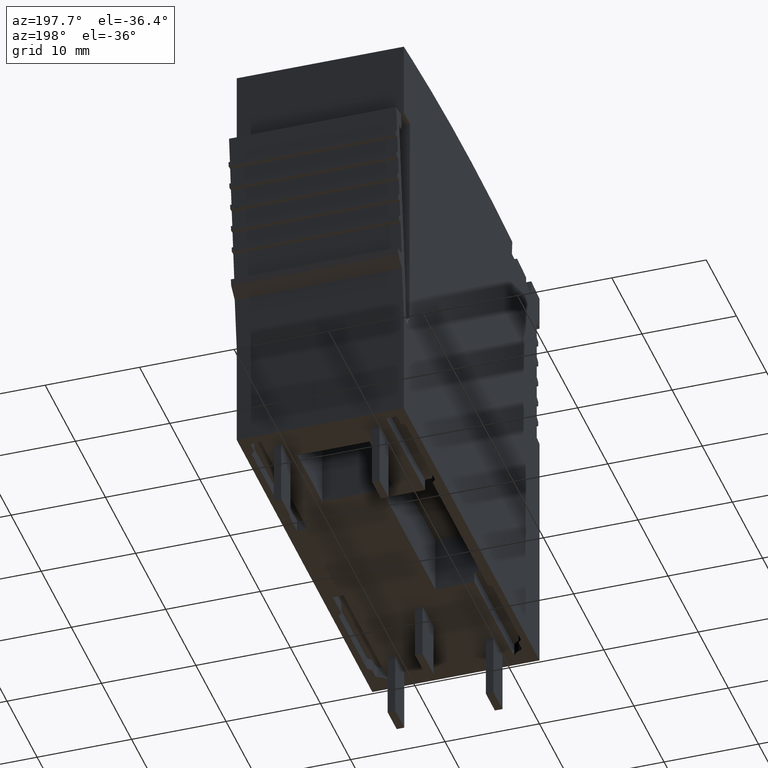
[diagram: clean part render]
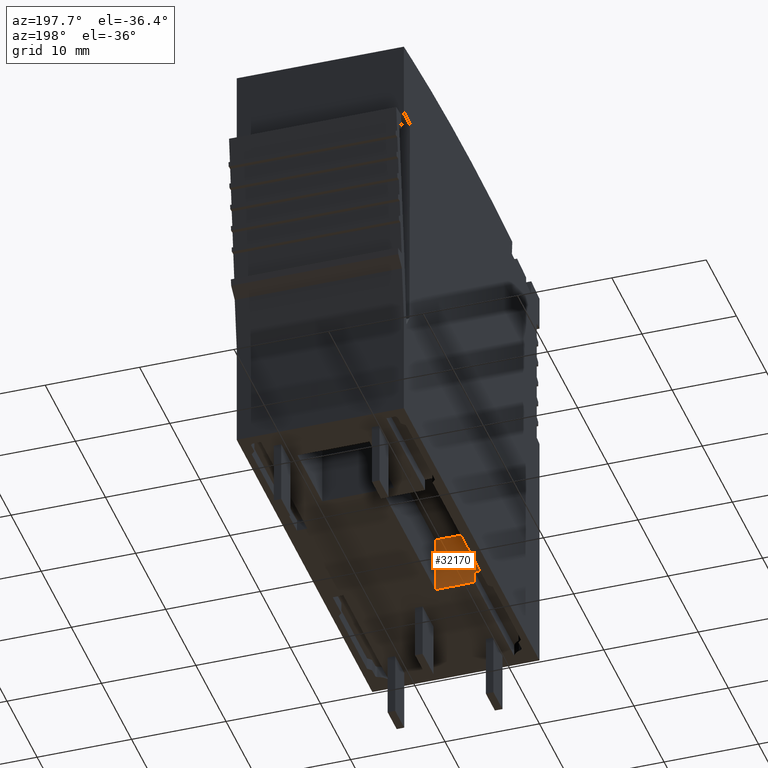
[diagram: same view with one face highlighted and labeled with its STEP entity id]
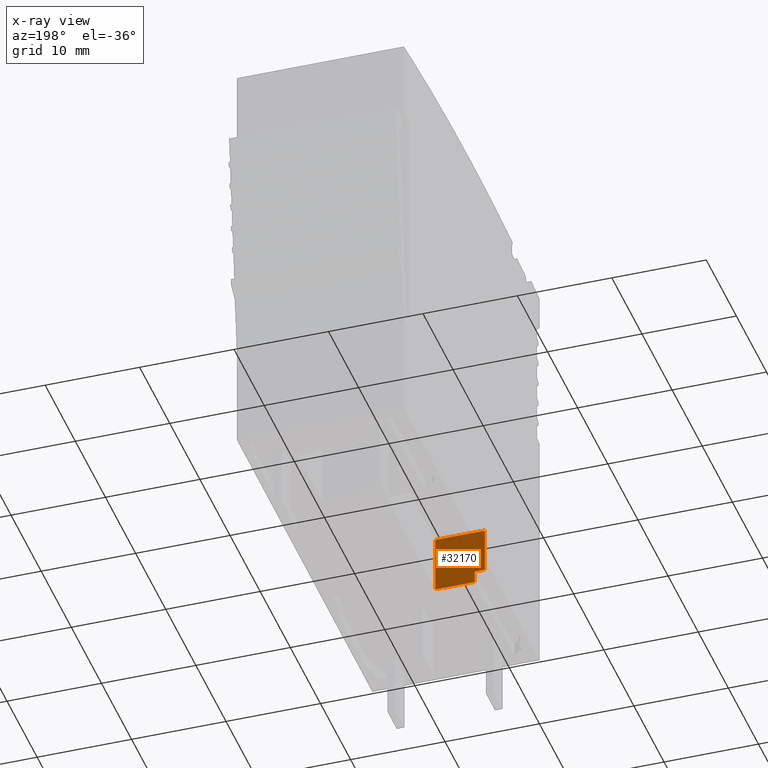
[diagram: x-ray of the same camera — body ghosted, the highlighted face saturated]
A machine part, auxiliary view. The second image highlights one B-rep face of the part: STEP entity #32170.
The next image is the same camera in x-ray: the body ghosted, the highlighted face saturated — about 6% of this face is hidden behind the body in this view.
In plain terms, the highlighted planar face has unit normal (0, 1, -0).
Its self-contained STEP definition (entity closure, byte-faithful):
#16340=CARTESIAN_POINT('',(167.00843361951,47.2590821833395,
-6.44313980154173));
#16350=VERTEX_POINT('',#16340);
#16380=CARTESIAN_POINT('',(167.008433619114,47.2590821833395,
-10.9500000064318));
#16390=DIRECTION('',(8.79217809668375E-11,1.12560718353478E-32,1.));
#16400=VECTOR('',#16390,1.);
#16410=LINE('',#16380,#16400);
#16420=CARTESIAN_POINT('',(167.008433619874,47.2590821833395,
-2.30000000443663));
#16430=VERTEX_POINT('',#16420);
#16440=EDGE_CURVE('',#16350,#16430,#16410,.T.);
#28670=CARTESIAN_POINT('',(167.00843361951,53.4590821833322,
-6.44313980154173));
#28680=VERTEX_POINT('',#28670);
#28710=CARTESIAN_POINT('',(167.00843361951,28.860123,-6.44313980154173))
;
#28720=DIRECTION('',(-3.69971924844519E-23,1.,-5.30690754904639E-33));
#28730=VECTOR('',#28720,1.);
#28740=LINE('',#28710,#28730);
#28750=EDGE_CURVE('',#16350,#28680,#28740,.T.);
#28970=CARTESIAN_POINT('',(167.008433619971,53.4590821833322,
-1.20000000520385));
#28980=VERTEX_POINT('',#28970);
#29010=CARTESIAN_POINT('',(167.008433619114,53.4590821833322,
-10.9500000064318));
#29020=DIRECTION('',(-8.79217809668375E-11,-1.12560718353478E-32,-1.));
#29030=VECTOR('',#29020,1.);
#29040=LINE('',#29010,#29030);
#29050=EDGE_CURVE('',#28980,#28680,#29040,.T.);
#29360=CARTESIAN_POINT('',(167.008433619971,48.5590821827986,
-1.20000000520385));
#29370=VERTEX_POINT('',#29360);
#29400=CARTESIAN_POINT('',(167.008433619971,28.860123,-1.20000000520385)
);
#29410=DIRECTION('',(-3.69971924844519E-23,1.,-5.30690754904639E-33));
#29420=VECTOR('',#29410,1.);
#29430=LINE('',#29400,#29420);
#29440=EDGE_CURVE('',#29370,#28980,#29430,.T.);
#29660=CARTESIAN_POINT('',(167.008433619874,28.860123,-2.30000000443663)
);
#29670=DIRECTION('',(3.69971924844519E-23,-1.,5.30690754904639E-33));
#29680=VECTOR('',#29670,1.);
#29690=LINE('',#29660,#29680);
#29700=CARTESIAN_POINT('',(167.008433619874,48.5590821827986,
-2.30000000443663));
#29710=VERTEX_POINT('',#29700);
#29720=EDGE_CURVE('',#29710,#16430,#29690,.T.);
#30420=CARTESIAN_POINT('',(167.008433619114,48.5590821827986,
-10.9500000064318));
#30430=DIRECTION('',(-8.79217809668375E-11,-1.12560718353478E-32,-1.));
#30440=VECTOR('',#30430,1.);
#30450=LINE('',#30420,#30440);
#30460=EDGE_CURVE('',#29370,#29710,#30450,.T.);
#32040=CARTESIAN_POINT('',(167.008433619971,47.2590821833395,
-1.20000000520385));
#32050=DIRECTION('',(-1.,-3.69971924844519E-23,8.79217809668375E-11));
#32060=DIRECTION('',(8.79217809668375E-11,8.55977034699744E-33,1.));
#32070=AXIS2_PLACEMENT_3D('',#32040,#32050,#32060);
#32080=PLANE('',#32070);
#32090=ORIENTED_EDGE('',*,*,#29720,.F.);
#32100=ORIENTED_EDGE('',*,*,#16440,.T.);
#32110=ORIENTED_EDGE('',*,*,#28750,.F.);
#32120=ORIENTED_EDGE('',*,*,#29050,.T.);
#32130=ORIENTED_EDGE('',*,*,#29440,.T.);
#32140=ORIENTED_EDGE('',*,*,#30460,.F.);
#32150=EDGE_LOOP('',(#32140,#32130,#32120,#32110,#32100,#32090));
#32160=FACE_OUTER_BOUND('',#32150,.T.);
#32170=ADVANCED_FACE('',(#32160),#32080,.T.);